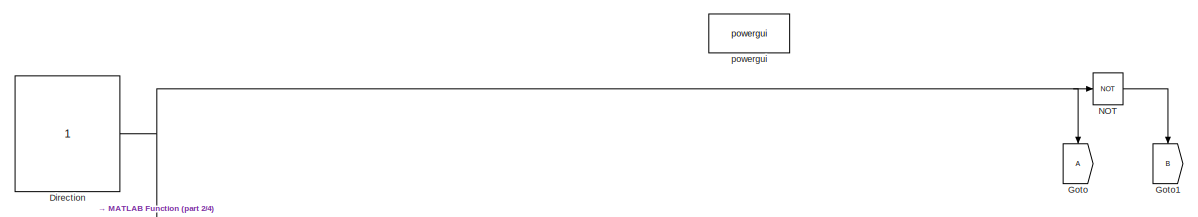
[diagram: root canvas - part 1/4, top left region]
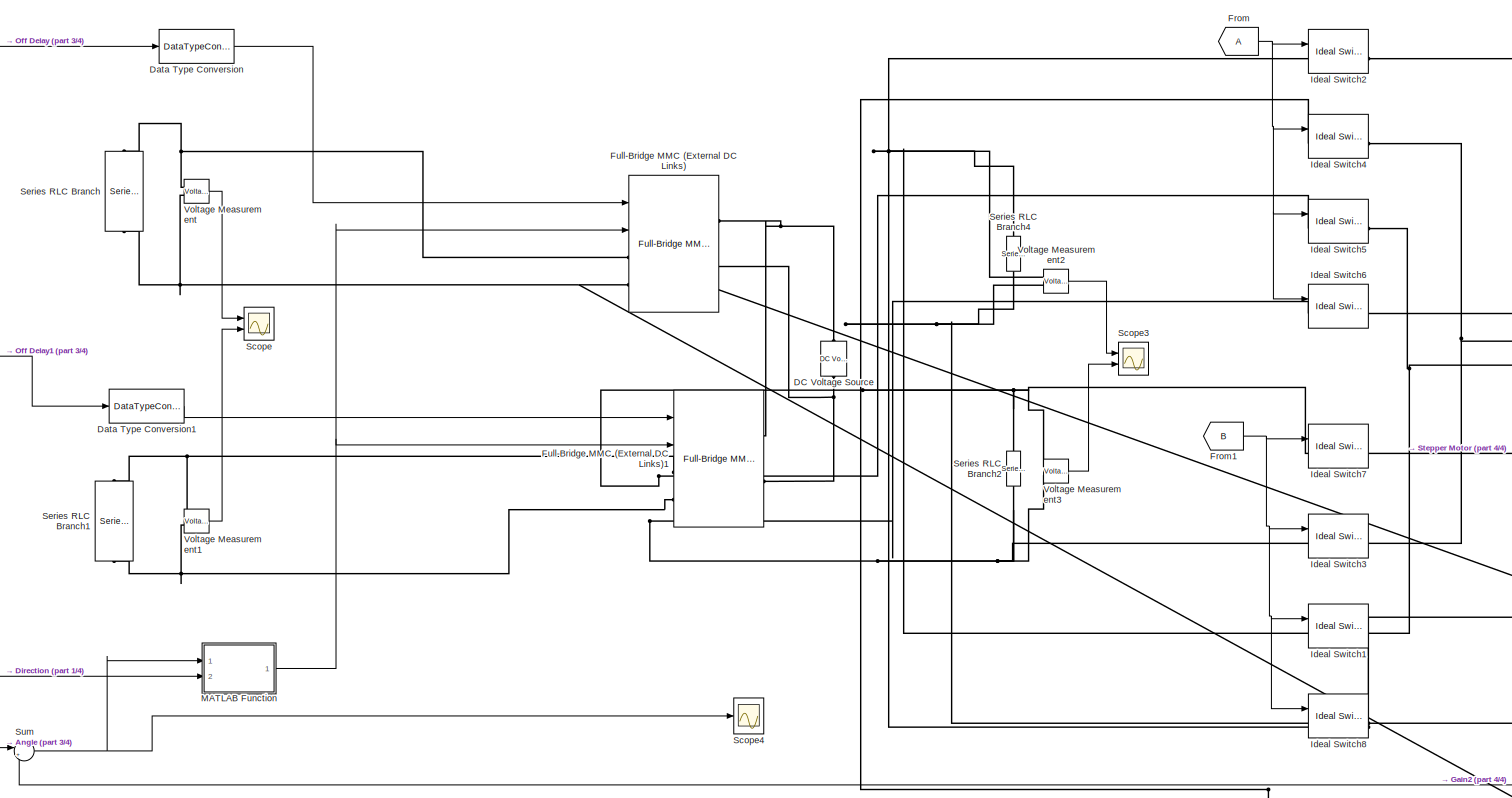
[diagram: root canvas - part 2/4, central region]
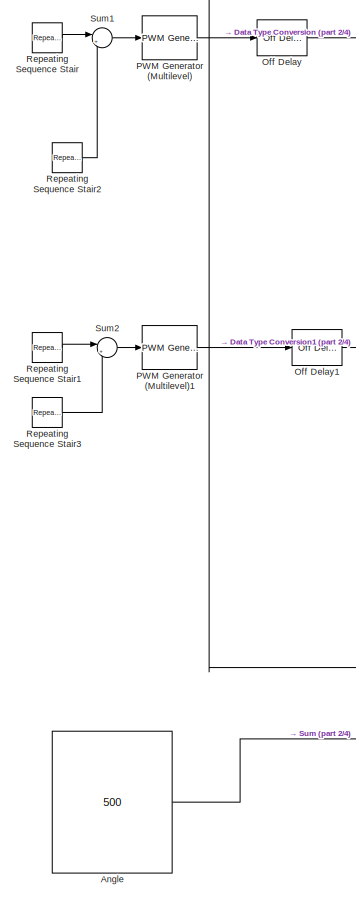
[diagram: root canvas - part 3/4, left side, full height]
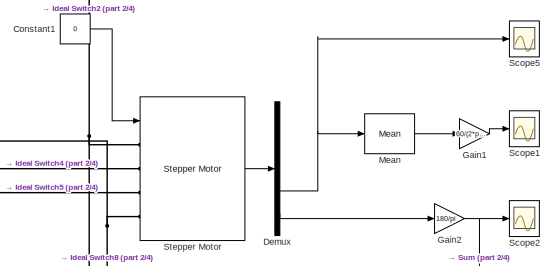
[diagram: root canvas - part 4/4, middle right region]
MODEL slx_0597f6db4e89
KIND model
CONFIG AbsTol = auto
CONFIG EnableMultiTasking = off
CONFIG FixedStep = auto
CONFIG MaxStep = auto
CONFIG MinStep = auto
CONFIG RelTol = 1e-3
CONFIG SampleTimeConstraint = Unconstrained
CONFIG SolverName = VariableStepAuto
CONFIG StartTime = 0.0
CONFIG StopTime = 5
BLOCK [Constant] Angle
  Value = 500
BLOCK [Constant] Constant1
  Value = 0
BLOCK [Reference] DC Voltage Source  REF=spsDCVoltageSourceLib/DC Voltage Source
  NameLocation = right
  Ports = [0, 0, 0, 0, 0, 1, 1]
  SourceBlock = spsDCVoltageSourceLib/DC Voltage Source
  SourceProductBaseCode = PS
  SourceType = DC Voltage Source
BLOCK [DataTypeConversion] Data Type Conversion
  OutDataTypeStr = double
  RndMeth = Floor
  SaturateOnIntegerOverflow = off
BLOCK [DataTypeConversion] Data Type Conversion1
  OutDataTypeStr = double
  RndMeth = Floor
  SaturateOnIntegerOverflow = off
BLOCK [Demux] Demux
  Outputs = 5
  Ports = [1, 5]
BLOCK [Constant] Direction
BLOCK [From] From
BLOCK [From] From1
  GotoTag = B
BLOCK [Reference] Full-Bridge MMC (External DC Links)  REF=spsFullBridgeMMCExternalDCLinksLib/Full-Bridge MMC
(External DC Links)
  Ports = [2, 0, 0, 0, 0, 2, 2]
  SourceBlock = spsFullBridgeMMCExternalDCLinksLib/Full-Bridge MMC\n(External DC Links)
  SourceProductBaseCode = PS
  SourceType = Full-Bridge MMC (External DC Links)
BLOCK [Reference] Full-Bridge MMC (External DC Links)1  REF=spsFullBridgeMMCExternalDCLinksLib/Full-Bridge MMC
(External DC Links)
  Ports = [2, 0, 0, 0, 0, 2, 2]
  SourceBlock = spsFullBridgeMMCExternalDCLinksLib/Full-Bridge MMC\n(External DC Links)
  SourceProductBaseCode = PS
  SourceType = Full-Bridge MMC (External DC Links)
BLOCK [Gain] Gain1
  Gain = 60/(2*pi)
BLOCK [Gain] Gain2
  Gain = 180/pi
BLOCK [Goto] Goto
  NameLocation = left
BLOCK [Goto] Goto1
  GotoTag = B
  NameLocation = left
BLOCK [Reference] Ideal Switch1  REF=spsIdealSwitchLib/Ideal Switch
  Ports = [1, 1, 0, 0, 0, 1, 1]
  SourceBlock = spsIdealSwitchLib/Ideal Switch
  SourceProductBaseCode = PS
  SourceType = Ideal Switch
BLOCK [Reference] Ideal Switch2  REF=spsIdealSwitchLib/Ideal Switch
  Ports = [1, 1, 0, 0, 0, 1, 1]
  SourceBlock = spsIdealSwitchLib/Ideal Switch
  SourceProductBaseCode = PS
  SourceType = Ideal Switch
BLOCK [Reference] Ideal Switch3  REF=spsIdealSwitchLib/Ideal Switch
  Ports = [1, 1, 0, 0, 0, 1, 1]
  SourceBlock = spsIdealSwitchLib/Ideal Switch
  SourceProductBaseCode = PS
  SourceType = Ideal Switch
BLOCK [Reference] Ideal Switch4  REF=spsIdealSwitchLib/Ideal Switch
  Ports = [1, 1, 0, 0, 0, 1, 1]
  SourceBlock = spsIdealSwitchLib/Ideal Switch
  SourceProductBaseCode = PS
  SourceType = Ideal Switch
BLOCK [Reference] Ideal Switch5  REF=spsIdealSwitchLib/Ideal Switch
  Ports = [1, 1, 0, 0, 0, 1, 1]
  SourceBlock = spsIdealSwitchLib/Ideal Switch
  SourceProductBaseCode = PS
  SourceType = Ideal Switch
BLOCK [Reference] Ideal Switch6  REF=spsIdealSwitchLib/Ideal Switch
  Ports = [1, 1, 0, 0, 0, 1, 1]
  SourceBlock = spsIdealSwitchLib/Ideal Switch
  SourceProductBaseCode = PS
  SourceType = Ideal Switch
BLOCK [Reference] Ideal Switch7  REF=spsIdealSwitchLib/Ideal Switch
  Ports = [1, 1, 0, 0, 0, 1, 1]
  SourceBlock = spsIdealSwitchLib/Ideal Switch
  SourceProductBaseCode = PS
  SourceType = Ideal Switch
BLOCK [Reference] Ideal Switch8  REF=spsIdealSwitchLib/Ideal Switch
  Ports = [1, 1, 0, 0, 0, 1, 1]
  SourceBlock = spsIdealSwitchLib/Ideal Switch
  SourceProductBaseCode = PS
  SourceType = Ideal Switch
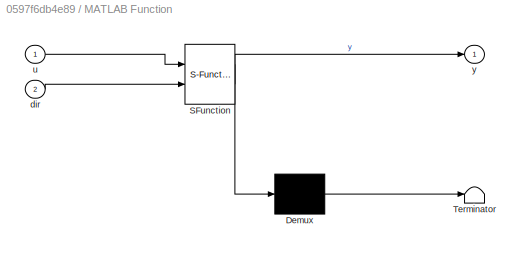
BLOCK [SubSystem] MATLAB Function
  ErrorFcn = Stateflow.Translate.translate
  PermitHierarchicalResolution = ExplicitOnly
  Ports = [2, 1]
  RequestExecContextInheritance = off
  SFBlockType = MATLAB Function
  TreatAsAtomicUnit = on
BLOCK [Demux] MATLAB Function/ Demux 
  Outputs = 1
  Ports = [1, 1]
BLOCK [S-Function] MATLAB Function/ SFunction 
  EnableBusSupport = on
  FunctionName = sf_sfun
  PortCounts = [2 2]
  Ports = [2, 2]
  SFcnIsStateOwnerBlock = off
  SFunctionDeploymentMode = off
  Tag = Stateflow S-Function 2
BLOCK [Terminator] MATLAB Function/ Terminator 
BLOCK [Inport] MATLAB Function/dir
  Port = 2
BLOCK [Inport] MATLAB Function/u
BLOCK [Outport] MATLAB Function/y
BLOCK [Reference] Mean  REF=spsMeanLib/Mean
  Ports = [1, 1]
  SourceBlock = spsMeanLib/Mean
  SourceProductBaseCode = PS
  SourceType = Mean
BLOCK [Logic] NOT
  AllPortsSameDT = off
  IconShape = distinctive
  Operator = NOT
  OutDataTypeStr = boolean
  Ports = [1, 1]
BLOCK [Reference] Off Delay  REF=spsOffDelayLib/Off Delay
  Ports = [1, 1]
  SourceBlock = spsOffDelayLib/Off Delay
  SourceProductBaseCode = PS
  SourceType = On/Off Delay
BLOCK [Reference] Off Delay1  REF=spsOffDelayLib/Off Delay
  Ports = [1, 1]
  SourceBlock = spsOffDelayLib/Off Delay
  SourceProductBaseCode = PS
  SourceType = On/Off Delay
BLOCK [Reference] PWM Generator (Multilevel)  REF=spsPWMGeneratorMultilevelLib/PWM Generator
(Multilevel)
  Ports = [1, 1]
  SourceBlock = spsPWMGeneratorMultilevelLib/PWM Generator\n(Multilevel)
  SourceProductBaseCode = PS
  SourceType = PWM Generator (Multilevel)
BLOCK [Reference] PWM Generator (Multilevel)1  REF=spsPWMGeneratorMultilevelLib/PWM Generator
(Multilevel)
  Ports = [1, 1]
  SourceBlock = spsPWMGeneratorMultilevelLib/PWM Generator\n(Multilevel)
  SourceProductBaseCode = PS
  SourceType = PWM Generator (Multilevel)
BLOCK [Reference] Repeating Sequence Stair  REF=simulink/Sources/Repeating
Sequence
Stair
  Ports = [0, 1]
  SourceBlock = simulink/Sources/Repeating\nSequence\nStair
  SourceProductBaseCode = SL
  SourceType = Repeating Sequence Stair
BLOCK [Reference] Repeating Sequence Stair1  REF=simulink/Sources/Repeating
Sequence
Stair
  Ports = [0, 1]
  SourceBlock = simulink/Sources/Repeating\nSequence\nStair
  SourceProductBaseCode = SL
  SourceType = Repeating Sequence Stair
BLOCK [Reference] Repeating Sequence Stair2  REF=simulink/Sources/Repeating
Sequence
Stair
  Ports = [0, 1]
  SourceBlock = simulink/Sources/Repeating\nSequence\nStair
  SourceProductBaseCode = SL
  SourceType = Repeating Sequence Stair
BLOCK [Reference] Repeating Sequence Stair3  REF=simulink/Sources/Repeating
Sequence
Stair
  Ports = [0, 1]
  SourceBlock = simulink/Sources/Repeating\nSequence\nStair
  SourceProductBaseCode = SL
  SourceType = Repeating Sequence Stair
BLOCK [Scope] Scope
  Floating = off
  NumInputPorts = 2
  Ports = [2]
  ScopeSpecificationString = Simulink.scopes.TimeScopeBlockCfg('CurrentConfiguration', extmgr.ConfigurationSet(extmgr.Configuration('Core','General UI',true),extmgr.Configuration('Core','Source UI',true),extmgr.Configuration('Sources','WiredSimulink',true),extmgr.Configuration('Visuals','Time Domain',true,'SerializedDisplays',{struct('MinYLimReal','-25.01049','MaxYLimReal','25.00541','YLabelReal','','MinYLimMag','0.00000','Ma...<+1441ch>
BLOCK [Scope] Scope1
  Floating = off
  NumInputPorts = 1
  Ports = [1]
  ScopeSpecificationString = Simulink.scopes.TimeScopeBlockCfg('CurrentConfiguration', extmgr.ConfigurationSet(extmgr.Configuration('Core','General UI',true),extmgr.Configuration('Core','Source UI',true),extmgr.Configuration('Sources','WiredSimulink',true,'DataLoggingVariableName','ScopeData1'),extmgr.Configuration('Visuals','Time Domain',true,'SerializedDisplays',{struct('MinYLimReal','-51.25021','MaxYLimReal','361.5773','YL...<+1472ch>
BLOCK [Scope] Scope2
  Floating = off
  NumInputPorts = 1
  Ports = [1]
  ScopeSpecificationString = Simulink.scopes.TimeScopeBlockCfg('CurrentConfiguration', extmgr.ConfigurationSet(extmgr.Configuration('Core','General UI',true,'DisplayFullSourceName',true),extmgr.Configuration('Core','Source UI',true),extmgr.Configuration('Sources','WiredSimulink',true,'DataLoggingVariableName','ScopeData2'),extmgr.Configuration('Visuals','Time Domain',true,'SerializedDisplays',{struct('MinYLimReal','316.24476'...<+1480ch>
BLOCK [Scope] Scope3
  Floating = off
  NumInputPorts = 2
  Ports = [2]
  ScopeSpecificationString = Simulink.scopes.TimeScopeBlockCfg('CurrentConfiguration', extmgr.ConfigurationSet(extmgr.Configuration('Core','General UI',true),extmgr.Configuration('Core','Source UI',true),extmgr.Configuration('Sources','WiredSimulink',true,'DataLoggingVariableName','ScopeData1'),extmgr.Configuration('Visuals','Time Domain',true,'SerializedDisplays',{struct('MinYLimReal','-21.69723','MaxYLimReal','22.0955','YLa...<+1477ch>
BLOCK [Scope] Scope4
  Floating = off
  NumInputPorts = 1
  Ports = [1]
  ScopeSpecificationString = Simulink.scopes.TimeScopeBlockCfg('CurrentConfiguration', extmgr.ConfigurationSet(extmgr.Configuration('Core','General UI',true),extmgr.Configuration('Core','Source UI',true),extmgr.Configuration('Sources','WiredSimulink',true,'DataLoggingVariableName','ScopeData2'),extmgr.Configuration('Visuals','Time Domain',true,'SerializedDisplays',{struct('MinYLimReal','-65.20801','MaxYLimReal','562.80089','Y...<+1445ch>
BLOCK [Scope] Scope5
  Floating = off
  NumInputPorts = 1
  Ports = [1]
  ScopeSpecificationString = Simulink.scopes.TimeScopeBlockCfg('CurrentConfiguration', extmgr.ConfigurationSet(extmgr.Configuration('Core','General UI',true),extmgr.Configuration('Core','Source UI',true),extmgr.Configuration('Sources','WiredSimulink',true,'DataLoggingVariableName','ScopeData1'),extmgr.Configuration('Visuals','Time Domain',true,'SerializedDisplays',{struct('MinYLimReal','-27.06518','MaxYLimReal','55.37673','YL...<+1445ch>
BLOCK [Reference] Series RLC Branch  REF=spsSeriesRLCBranchLib/Series RLC Branch
  NameLocation = left
  Ports = [0, 0, 0, 0, 0, 1, 1]
  SourceBlock = spsSeriesRLCBranchLib/Series RLC Branch
  SourceProductBaseCode = PS
  SourceType = Series RLC Branch
BLOCK [Reference] Series RLC Branch1  REF=spsSeriesRLCBranchLib/Series RLC Branch
  NameLocation = left
  Ports = [0, 0, 0, 0, 0, 1, 1]
  SourceBlock = spsSeriesRLCBranchLib/Series RLC Branch
  SourceProductBaseCode = PS
  SourceType = Series RLC Branch
BLOCK [Reference] Series RLC Branch2  REF=spsSeriesRLCBranchLib/Series RLC Branch
  NameLocation = left
  Ports = [0, 0, 0, 0, 0, 1, 1]
  SourceBlock = spsSeriesRLCBranchLib/Series RLC Branch
  SourceProductBaseCode = PS
  SourceType = Series RLC Branch
BLOCK [Reference] Series RLC Branch4  REF=spsSeriesRLCBranchLib/Series RLC Branch
  NameLocation = left
  Ports = [0, 0, 0, 0, 0, 1, 1]
  SourceBlock = spsSeriesRLCBranchLib/Series RLC Branch
  SourceProductBaseCode = PS
  SourceType = Series RLC Branch
BLOCK [Reference] Stepper Motor  REF=spsStepperMotorLib/Stepper Motor
  Ports = [1, 1, 0, 0, 0, 4]
  SourceBlock = spsStepperMotorLib/Stepper Motor
  SourceProductBaseCode = PS
  SourceType = Stepper Motor
BLOCK [Sum] Sum
  Inputs = |+-
  Ports = [2, 1]
BLOCK [Sum] Sum1
  Inputs = |+-
  Ports = [2, 1]
BLOCK [Sum] Sum2
  Inputs = |+-
  Ports = [2, 1]
BLOCK [Reference] Voltage Measurement  REF=spsVoltageMeasurementLib/Voltage Measurement
  Ports = [0, 1, 0, 0, 0, 2]
  SourceBlock = spsVoltageMeasurementLib/Voltage Measurement
  SourceProductBaseCode = PS
  SourceType = Voltage Measurement
  UserDataPersistent = on
BLOCK [Reference] Voltage Measurement1  REF=spsVoltageMeasurementLib/Voltage Measurement
  Ports = [0, 1, 0, 0, 0, 2]
  SourceBlock = spsVoltageMeasurementLib/Voltage Measurement
  SourceProductBaseCode = PS
  SourceType = Voltage Measurement
  UserDataPersistent = on
BLOCK [Reference] Voltage Measurement2  REF=spsVoltageMeasurementLib/Voltage Measurement
  Ports = [0, 1, 0, 0, 0, 2]
  SourceBlock = spsVoltageMeasurementLib/Voltage Measurement
  SourceProductBaseCode = PS
  SourceType = Voltage Measurement
  UserDataPersistent = on
BLOCK [Reference] Voltage Measurement3  REF=spsVoltageMeasurementLib/Voltage Measurement
  Ports = [0, 1, 0, 0, 0, 2]
  SourceBlock = spsVoltageMeasurementLib/Voltage Measurement
  SourceProductBaseCode = PS
  SourceType = Voltage Measurement
  UserDataPersistent = on
BLOCK [Reference] powergui  REF=spspowerguiLib/powergui
  Ports = []
  Priority = 1
  SourceBlock = spspowerguiLib/powergui
  SourceProductBaseCode = PS
  SourceType = PSB option menu block
LINE Angle:1 -> Sum:1
LINE Constant1:1 -> Stepper Motor:1
LINE Data Type Conversion1:1 -> Full-Bridge MMC (External DC Links)1:1
LINE Data Type Conversion:1 -> Full-Bridge MMC (External DC Links):1
NET Demux:4 -> Mean:1, Scope5:1
LINE Demux:5 -> Gain2:1
NET Direction:1 -> Goto:1, MATLAB Function:2, NOT:1
NET From1:1 -> Ideal Switch1:1, Ideal Switch3:1, Ideal Switch7:1, Ideal Switch8:1
NET From:1 -> Ideal Switch2:1, Ideal Switch4:1, Ideal Switch5:1, Ideal Switch6:1
LINE Gain1:1 -> Scope1:1
NET Gain2:1 -> Scope2:1, Sum:2
NET MATLAB Function:1 -> Full-Bridge MMC (External DC Links)1:2, Full-Bridge MMC (External DC Links):2
LINE Mean:1 -> Gain1:1
LINE NOT:1 -> Goto1:1
LINE Off Delay1:1 -> Data Type Conversion1:1
LINE Off Delay:1 -> Data Type Conversion:1
LINE PWM Generator (Multilevel)1:1 -> Off Delay1:1
LINE PWM Generator (Multilevel):1 -> Off Delay:1
LINE Repeating Sequence Stair1:1 -> Sum2:1
LINE Repeating Sequence Stair2:1 -> Sum1:2
LINE Repeating Sequence Stair3:1 -> Sum2:2
LINE Repeating Sequence Stair:1 -> Sum1:1
LINE Stepper Motor:1 -> Demux:1
LINE Sum1:1 -> PWM Generator (Multilevel):1
LINE Sum2:1 -> PWM Generator (Multilevel)1:1
NET Sum:1 -> MATLAB Function:1, Scope4:1
LINE Voltage Measurement1:1 -> Scope:2
LINE Voltage Measurement2:1 -> Scope3:1
LINE Voltage Measurement3:1 -> Scope3:2
LINE Voltage Measurement:1 -> Scope:1
PNET net1: DC Voltage Source:LConn1 -- Full-Bridge MMC (External DC Links)1:RConn2 -- Full-Bridge MMC (External DC Links):RConn2
PNET net2: DC Voltage Source:RConn1 -- Full-Bridge MMC (External DC Links)1:RConn1 -- Full-Bridge MMC (External DC Links):RConn1
PNET net3: Full-Bridge MMC (External DC Links)1:LConn1 -- Ideal Switch5:LConn1 -- Ideal Switch7:LConn1 -- Series RLC Branch1:LConn1 -- Series RLC Branch2:LConn1 -- Voltage Measurement1:LConn1 -- Voltage Measurement3:LConn1
PNET net4: Full-Bridge MMC (External DC Links)1:LConn2 -- Ideal Switch3:LConn1 -- Ideal Switch6:LConn1 -- Series RLC Branch1:RConn1 -- Series RLC Branch2:RConn1 -- Voltage Measurement1:LConn2 -- Voltage Measurement3:LConn2
PNET net5: Full-Bridge MMC (External DC Links):LConn1 -- Ideal Switch1:LConn1 -- Ideal Switch2:LConn1 -- Series RLC Branch4:LConn1 -- Series RLC Branch:LConn1 -- Voltage Measurement2:LConn1 -- Voltage Measurement:LConn1
PNET net6: Full-Bridge MMC (External DC Links):LConn2 -- Ideal Switch4:LConn1 -- Ideal Switch8:LConn1 -- Series RLC Branch4:RConn1 -- Series RLC Branch:RConn1 -- Voltage Measurement2:LConn2 -- Voltage Measurement:LConn2
PNET net7: Ideal Switch1:RConn1 -- Ideal Switch5:RConn1 -- Stepper Motor:LConn3
PNET net8: Ideal Switch2:RConn1 -- Ideal Switch7:RConn1 -- Stepper Motor:LConn1
PNET net9: Ideal Switch3:RConn1 -- Ideal Switch4:RConn1 -- Stepper Motor:LConn2
PNET net10: Ideal Switch6:RConn1 -- Ideal Switch8:RConn1 -- Stepper Motor:LConn4
note: NET lines group one-source signal fan-out (src -> all destinations, sorted); 1:1 wires keep LINE; PNET lines group multi-terminal physical nets as a canonical sorted terminal list (undirected conserving connections); 2-terminal nets keep the pairwise PLINE form
CHART MATLAB Function states=1 transitions=1
  STATE_LABEL 'eML_blk_kernel()'
  STATE_LABEL 'SCRIPT:\nfunction y  = fcn(u,dir)\n    if dir == 1\n        if (u < 0)\n            y = 1;\n        else\n            y = 0;\n        end\n    elseif dir == 0\n            if (u> 0)\n                y = 1;\n            else\n                y = 0;\n            end\n    else\n        y = 0;\n    end\nend\n'
CHART  states=0 transitions=0
